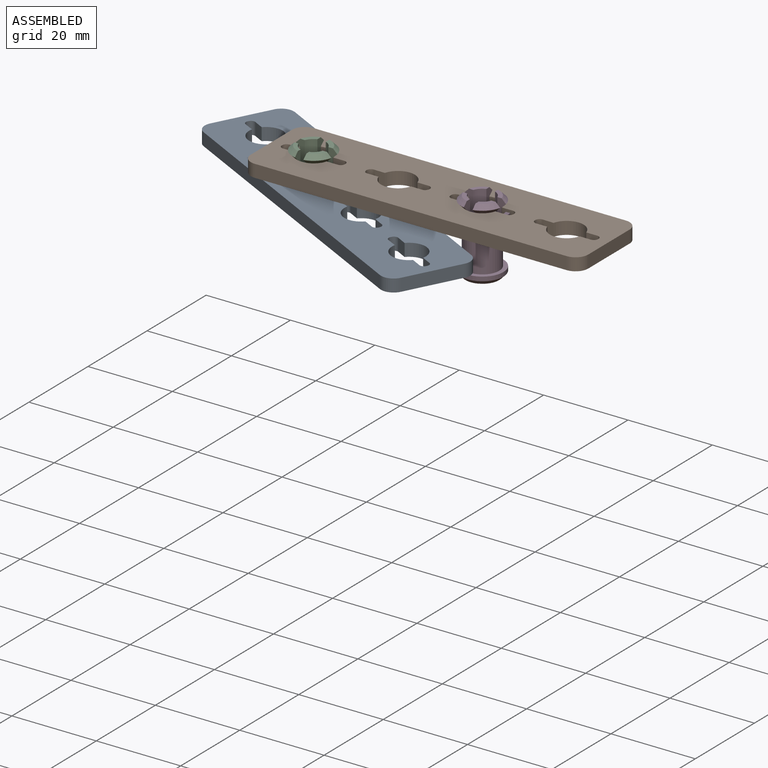
[diagram: assembled view]
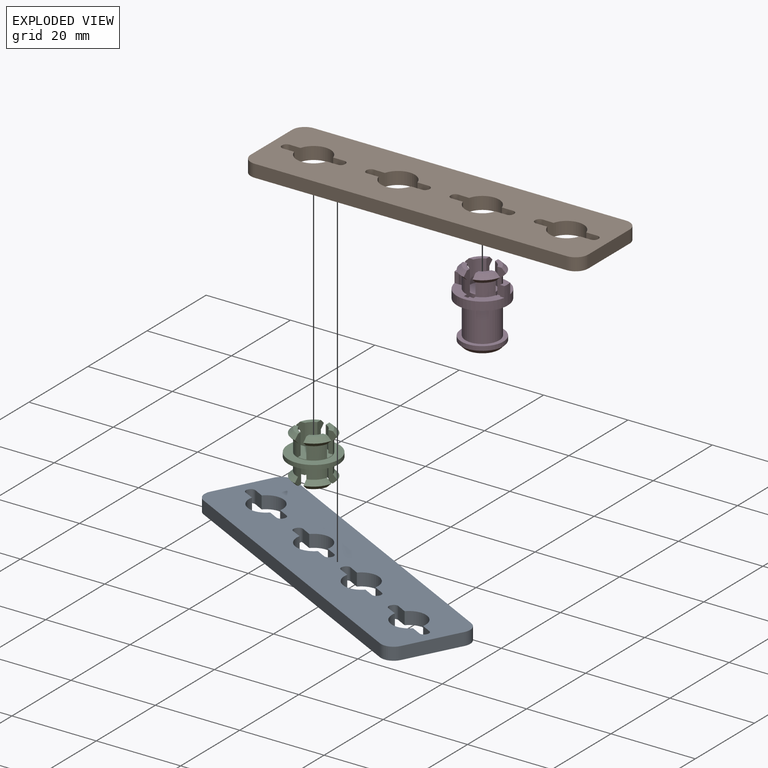
[diagram: exploded view]
GUIDED TOUR — MATED ASSEMBLY (Onshape document 07a3367b0b42184f097353d7, AutoMate assembly 07a3367b0b42184f097353d7_e492e3dcfe15bc395255ba68_c678337dc5a68c4c449586d9_default)

This assembly has 4 components, labeled P0..P3 below (a component is one placed occurrence of a part; the same part can appear more than once), held together by 3 mates. A mate is a constraint between two components; its type names the relative motion it leaves free:
  FASTENED — locks the two components together rigidly (no relative motion),
  REVOLUTE — leaves rotation about the listed axis free (a hinge).
Axis/direction vectors are unit vectors and 'through' points are millimeter coordinates, both in the assembly's world frame.

MATES
  1. FASTENED "Fastened 2": P2 <-> P1, direction (0.000, 0.000, 1.000) through (-11.90, 30.59, 31.71) mm
  2. FASTENED "Fastened 1": P3 <-> P1, direction (0.000, 0.000, 1.000) through (28.10, 30.59, 31.71) mm
  3. REVOLUTE "Revolute 2": P2 <-> P0, axis (0.000, 0.000, 1.000) through (-11.90, 30.59, 24.51) mm

ASSEMBLY ORDER
  1. P1 — the base component [order heuristic]
  2. P2 [order heuristic]
  3. P3 [order heuristic]
  4. P0 [order heuristic]
Order-tag legend:
  [order heuristic] — this assembly is geometrically interlocked (no collision-free removal order exists), so components are listed in mate-graph order; insertion feasibility is not verified.

Of the 4 components, 3 carry the full construction recipe — the FeatureScript program that regenerates the part's solid from scratch; the rest are supplied as boundary geometry only.
Each toured component is shown spotlighted twice — in the assembled view, then in the exploded view, where a leader line traces a displaced component back to its assembled socket (saturated green if recipe-attached, orange if geometry-only; every other component desaturated gray) — followed by its recipe or geometry summary and the mates that hold it.
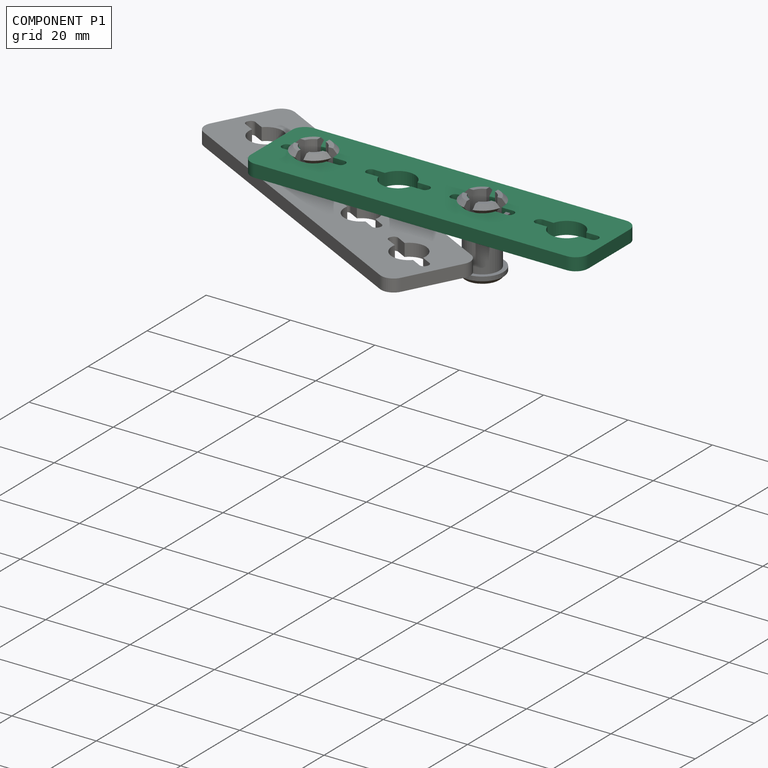
[diagram: component P1 — assembled]
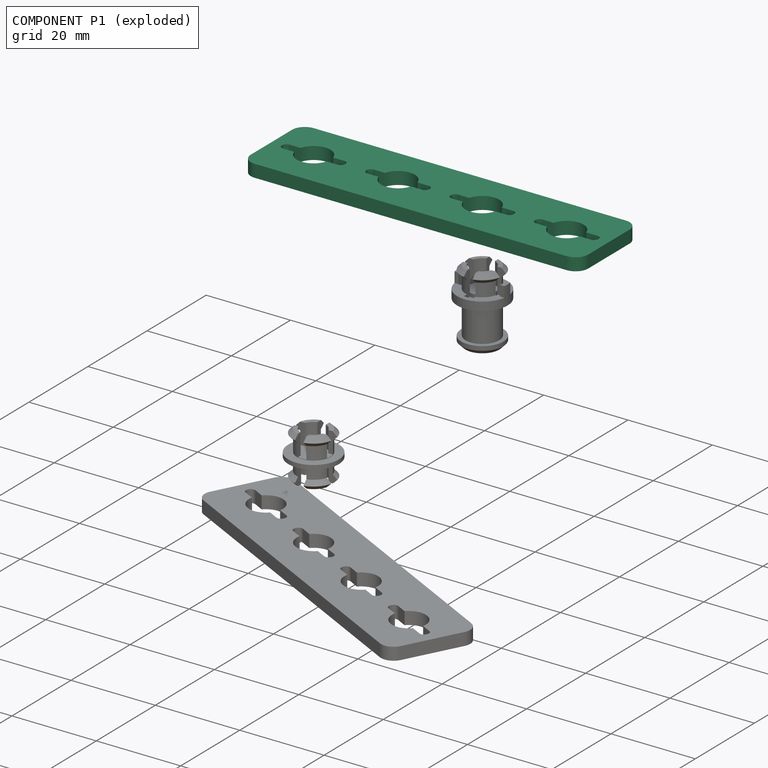
[diagram: component P1 — exploded]
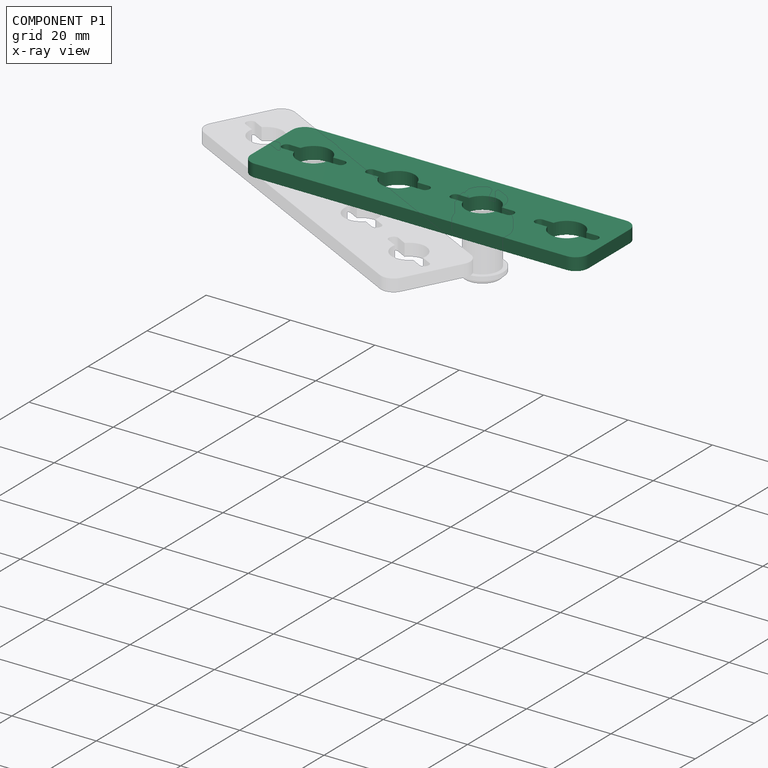
[diagram: component P1 — x-ray view]
COMPONENT P1 — same part as P0 (CADFS 00298308); its construction recipe is shown at P0.
Held by: FASTENED mate "Fastened 2" to P2; FASTENED mate "Fastened 1" to P3.
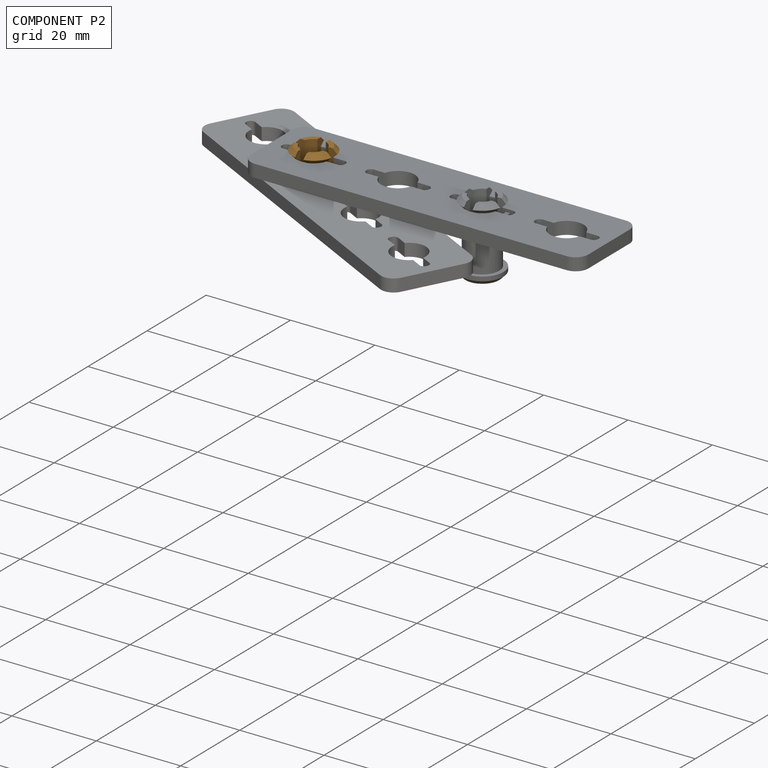
[diagram: component P2 — assembled]
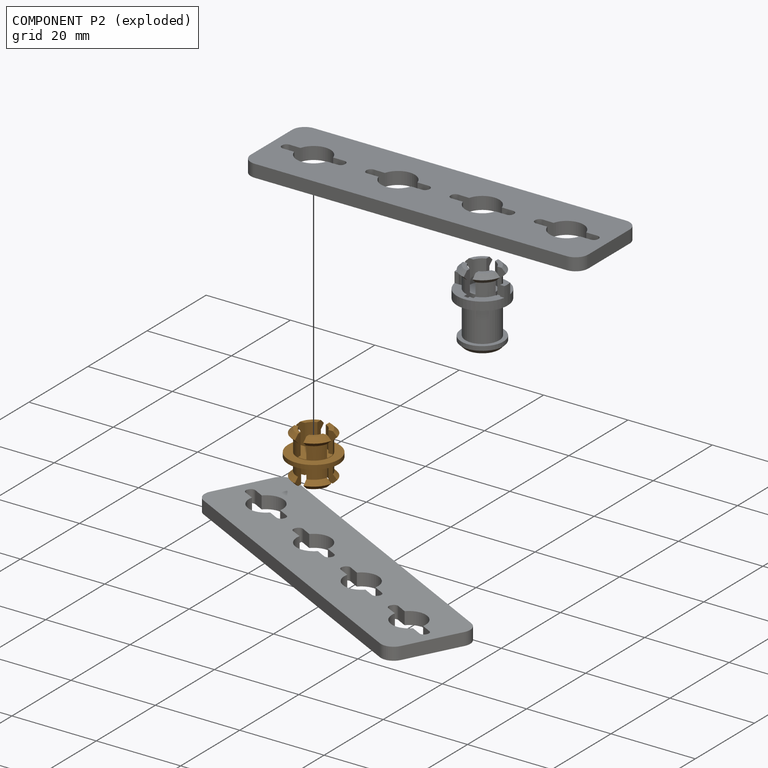
[diagram: component P2 — exploded]
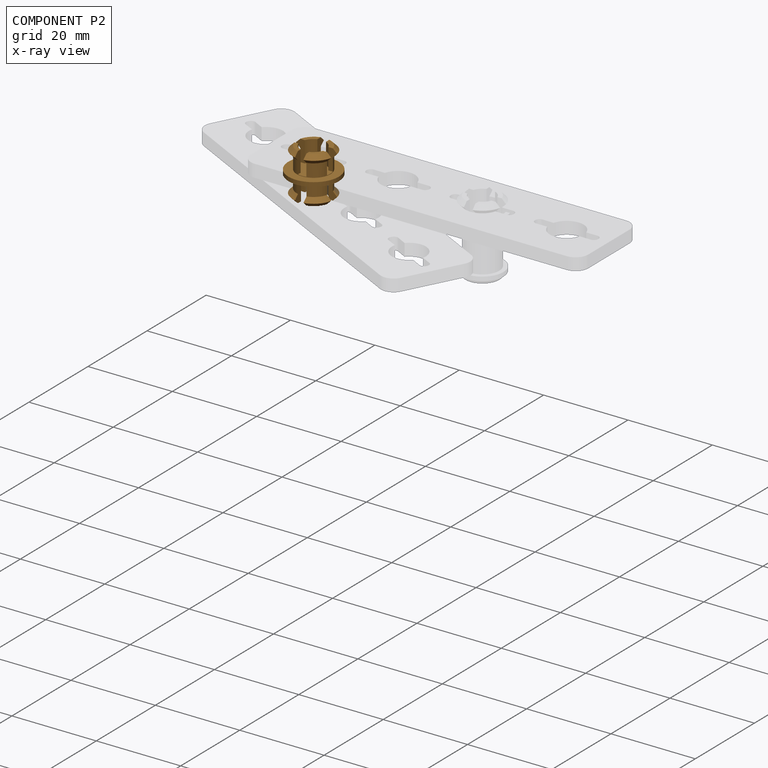
[diagram: component P2 — x-ray view]
COMPONENT P2 — geometry summary (no construction recipe available for this part):
  bounding box: 12.0 x 12.0 x 11.2 mm
  B-rep topology: 1 solid, 57 faces, 300 edges
  volume: 297 mm^3 (18% of its bounding box)
  symmetry: mirror-symmetric across its x mid-plane
Held by: FASTENED mate "Fastened 2" to P1; REVOLUTE mate "Revolute 2" to P0.
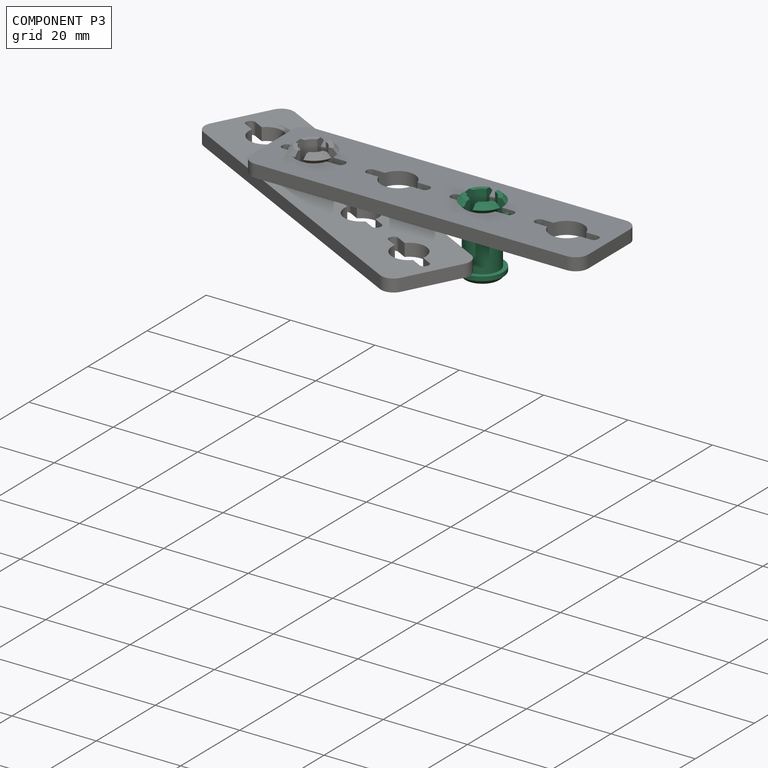
[diagram: component P3 — assembled]
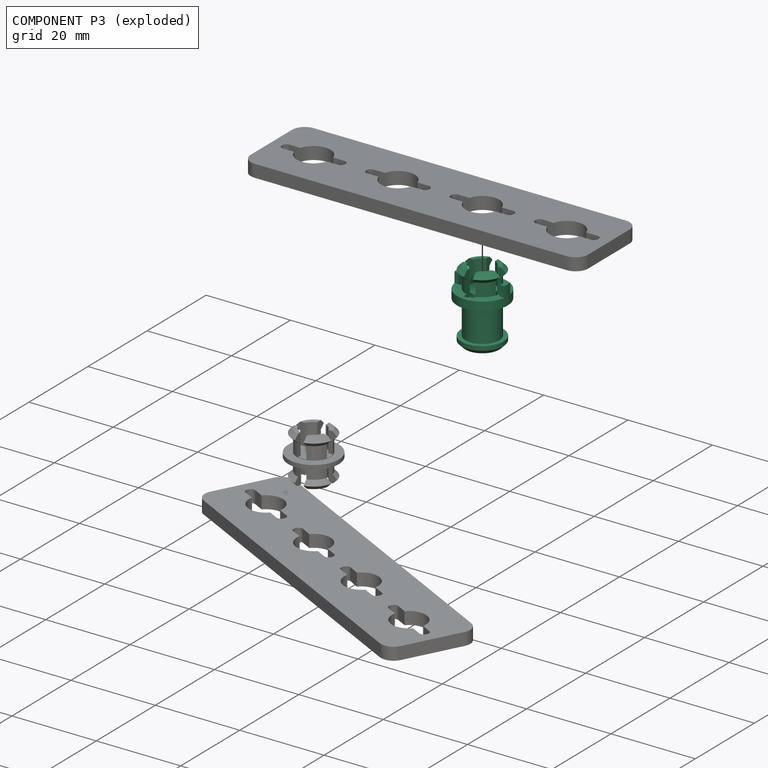
[diagram: component P3 — exploded]
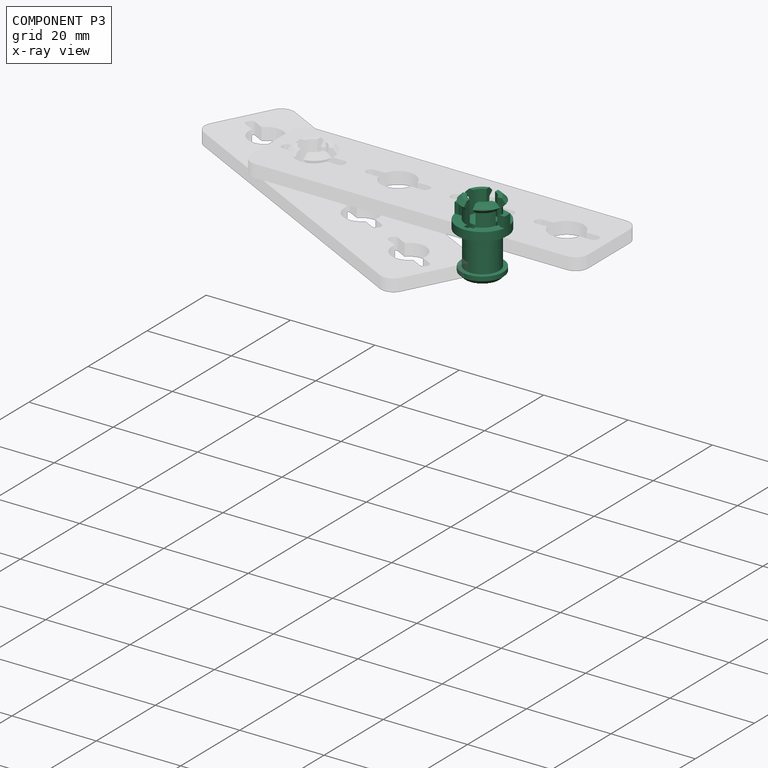
[diagram: component P3 — x-ray view]
COMPONENT P3 — recipe-attached (CADFS 00298309, mesh-verified: the recipe's output STEP matches this component's geometry to below the mesh-comparison resolution (tessellation chordal tolerance ~0.0361 mm)).
Held by: FASTENED mate "Fastened 1" to P1.
Construction recipe (FeatureScript — the CAD program that rebuilds this solid; sketch coordinates are in the units given by the * unit suffixes, e.g. mm):

FeatureScript 1549;
import(path : "onshape/std/geometry.fs", version : "1549.0");
import(path : "onshape/std/common.fs", version : "1549.0");
const mm = millimeter;
const VERTEX = EntityType.VERTEX;
const EDGE = EntityType.EDGE;
const FACE = EntityType.FACE;
const BODY = EntityType.BODY;
function v(x, y){return vector(x, y);}
function OD(order){return orderDisambiguation(order);}
function OSD(set){return originalSetDisambiguation(set);}
function TD(topology){return topologyDisambiguation(topology);}
function TDD(query){return trueDependencyDisambiguation(query);}
function sQuery(a, b, c) {return sketchEntityQuery(a, b, c);}

annotation { "Feature Type Name" : "Feature", "Feature Type Description" : "" }
export const myFeature = defineFeature(function(context is Context, id is Id, definition is map)
    precondition{}
    {
        {
            var Q0;
            Q0=qCreatedBy(makeId("Top.planeOp"),FACE);
            var sketch = newSketch(context, id + "F0", { "sketchPlane" : qUnion([Q0])});
            skCircle(sketch, "E0", {"center": v(0, 0) * mm, "radius": 5 * mm});
            skSolve(sketch);
        }
        {
            var Q0;
            Q0 = qSketchRegion(id + "F0", true);
            extrude(context, id + "F1", {"entities" : qUnion([Q0]), "depth" : 2 * mm});
        }
        {
            var Q0;
            Q0=makeQuery(id+"F1.opExtrude","CAP_FACE",FACE,{"disambiguationData":[OSD([sQuery(id+"F0.wireOp",EDGE,"E0")])],"isStart":false});
            var sketch = newSketch(context, id + "F2", { "sketchPlane" : qUnion([Q0])});
            skCircle(sketch, "E1", {"center": v(0, 0) * mm, "radius": 4 * mm});
            skSolve(sketch);
        }
        {
            var Q0;
            Q0 = qSketchRegion(id + "F2", true);
            extrude(context, id + "F3", {"entities" : qUnion([Q0]), "operationType" : NewBodyOperationType.ADD, "depth" : 8 * mm});
        }
        {
            var Q0;
            Q0=makeQuery(id+"F3.opExtrude","CAP_FACE",FACE,{"disambiguationData":[OSD([sQuery(id+"F2.wireOp",EDGE,"E1")])],"isStart":false});
            var sketch = newSketch(context, id + "F4", { "sketchPlane" : qUnion([Q0])});
            skCircle(sketch, "E2", {"center": v(0, 0) * mm, "radius": 6 * mm});
            skSolve(sketch);
        }
        {
            var Q0;
            Q0 = qSketchRegion(id + "F4", true);
            extrude(context, id + "F5", {"entities" : qUnion([Q0]), "operationType" : NewBodyOperationType.ADD, "depth" : 2 * mm});
        }
        {
            var Q0;
            Q0=makeQuery(id+"F5.opExtrude","CAP_FACE",FACE,{"disambiguationData":[OSD([sQuery(id+"F4.wireOp",EDGE,"E2")])],"isStart":false});
            var sketch = newSketch(context, id + "F6", { "sketchPlane" : qUnion([Q0])});
            skCircle(sketch, "E3", {"center": v(0, 0) * mm, "radius": 4.15 * mm});
            skLineSegment(sketch, "E4", {"start": v(-5.92, 1) * mm, "end": v(-4.52, 1) * mm});
            skLineSegment(sketch, "E5.MirrorCS", {"start": v(5.92, 1) * mm, "end": v(4.52, 1) * mm});
            skLineSegment(sketch, "E6.MirrorCS", {"start": v(5.92, -1) * mm, "end": v(4.52, -1) * mm});
            skLineSegment(sketch, "E7.MirrorCS", {"start": v(-5.92, -1) * mm, "end": v(-4.52, -1) * mm});
            skLineSegment(sketch, "E8", {"start": v(-4.52, 1) * mm, "end": v(-4.52, -1) * mm});
            skLineSegment(sketch, "E9.MirrorCS", {"start": v(4.52, 1) * mm, "end": v(4.52, -1) * mm});
            skLineSegment(sketch, "E10", {"start": v(-4.03, 1) * mm, "end": v(4.03, 1) * mm});
            skLineSegment(sketch, "E11.MirrorCS", {"start": v(-4.03, -1) * mm, "end": v(4.03, -1) * mm});
            skLineSegment(sketch, "E12", {"start": v(-1, 4.03) * mm, "end": v(-1, -4.03) * mm});
            skLineSegment(sketch, "E13.MirrorCS", {"start": v(1, 4.03) * mm, "end": v(1, -4.03) * mm});
            skSolve(sketch);
        }
        {
            var Q0;
            {var subQ0=sQuery(id+"F6.wireOp",EDGE,"E5.MirrorCS");Q0=makeQuery(id+"F6.imprint","IMPRINT",FACE,{"disambiguationData":[TD([[makeQuery(id+"F6.imprint","IMPRINT",EDGE,{"derivedFrom":subQ0}),1.0]])]});}
            var Q1;
            {var subQ0=sQuery(id+"F6.wireOp",EDGE,"E4");Q1=makeQuery(id+"F6.imprint","IMPRINT",FACE,{"disambiguationData":[TD([[makeQuery(id+"F6.imprint","IMPRINT",EDGE,{"derivedFrom":subQ0}),-1.0]])]});}
            extrude(context, id + "F7", {"entities" : qUnion([Q0, Q1]), "operationType" : NewBodyOperationType.ADD, "depth" : 2.5 * mm});
        }
        {
            var Q0;
            Q0=makeQuery(id+"F5.opExtrude","CAP_FACE",FACE,{"disambiguationData":[OSD([sQuery(id+"F4.wireOp",EDGE,"E2")])],"isStart":false});
            var sketch = newSketch(context, id + "F8", { "sketchPlane" : qUnion([Q0])});
            skCircle(sketch, "E14", {"center": v(0, 0) * mm, "radius": 4 * mm});
            skCircle(sketch, "E15", {"center": v(0, 0) * mm, "radius": 3 * mm});
            skSolve(sketch);
        }
        {
            var Q0;
            Q0=makeQuery(id+"F1.opExtrude","CAP_FACE",FACE,{"disambiguationData":[OSD([sQuery(id+"F0.wireOp",EDGE,"E0")])],"isStart":true});
            var sketch = newSketch(context, id + "F9", { "sketchPlane" : qUnion([Q0])});
            skLineSegment(sketch, "E16", {"start": v(-1.6, 2.6) * mm, "end": v(-1.6, -2.6) * mm});
            skLineSegment(sketch, "E17.MirrorCS", {"start": v(1.6, 2.6) * mm, "end": v(1.6, -2.6) * mm});
            skArc(sketch, "E18", {"start": v(-1.6, 2.6) * mm, "mid": v(0, 3.05) * mm, "end": v(1.6, 2.6) * mm});
            skArc(sketch, "E19", {"start": v(-1.6, -2.6) * mm, "mid": v(0, -3.05) * mm, "end": v(1.6, -2.6) * mm});
            skSolve(sketch);
        }
        {
            var Q0;
            Q0 = qSketchRegion(id + "F9", true);
            extrude(context, id + "F10", {"entities" : qUnion([Q0]), "operationType" : NewBodyOperationType.REMOVE, "oppositeDirection" : true, "depth" : 8 * mm});
        }
        {
            var Q0;
            Q0=makeQuery(id+"F1.opExtrude","CAP_EDGE",EDGE,{"disambiguationData":[OSD([sQuery(id+"F0.wireOp",EDGE,"E0")])],"isStart":true});
            chamfer(context, id + "F11", {"entities" : qUnion([Q0]), "width" : 1 * mm, "tangentPropagation" : true});
        }
        {
            var Q0;
            Q0=makeQuery(id+"F8.imprint","IMPRINT",FACE,{"disambiguationData":[TD([[makeQuery(id+"F8.imprint","IMPRINT",EDGE,{"derivedFrom":sQuery(id+"F8.wireOp",EDGE,"E14")}),1.0]])]});
            extrude(context, id + "F12", {"entities" : qUnion([Q0]), "operationType" : NewBodyOperationType.ADD, "depth" : 3.1 * mm});
        }
        {
            var Q0;
            Q0=makeQuery(id+"F12.opExtrude","CAP_FACE",FACE,{"disambiguationData":[OSD([sQuery(id+"F8.wireOp",EDGE,"E14"),sQuery(id+"F8.wireOp",EDGE,"E15")])],"isStart":false});
            var sketch = newSketch(context, id + "F13", { "sketchPlane" : qUnion([Q0])});
            skCircle(sketch, "E20", {"center": v(0, 0) * mm, "radius": 5 * mm});
            skSolve(sketch);
        }
        {
            var Q0;
            Q0=makeQuery(id+"F13.imprint","IMPRINT",FACE,{"disambiguationData":[TD([[makeQuery(id+"F13.imprint","IMPRINT",EDGE,{"derivedFrom":sQuery(id+"F13.wireOp",EDGE,"E20")}),1.0]])]});
            var Q1;
            Q1=makeQuery(id+"F13.imprint","IMPRINT",FACE,{"disambiguationData":[TD([[makeQuery(id+"F13.imprint","IMPRINT",EDGE,{"derivedFrom":makeQuery(id+"F12.opExtrude","CAP_EDGE",EDGE,{"disambiguationData":[OSD([sQuery(id+"F8.wireOp",EDGE,"E14")])],"isStart":false})}),1.0]])]});
            extrude(context, id + "F14", {"entities" : qUnion([Q0, Q1]), "operationType" : NewBodyOperationType.ADD, "depth" : 2 * mm});
        }
        {
            var Q0;
            Q0=makeQuery(id+"F14.opExtrude","CAP_FACE",FACE,{"disambiguationData":[OSD([sQuery(id+"F8.wireOp",EDGE,"E15"),sQuery(id+"F13.wireOp",EDGE,"E20")])],"isStart":false});
            var sketch = newSketch(context, id + "F15", { "sketchPlane" : qUnion([Q0])});
            skLineSegment(sketch, "E21", {"start": v(-4.9, 1) * mm, "end": v(4.9, 1) * mm});
            skLineSegment(sketch, "E22.MirrorCS", {"start": v(-4.9, -1) * mm, "end": v(4.9, -1) * mm});
            skLineSegment(sketch, "E23", {"start": v(-1.05, 4.89) * mm, "end": v(-0.95, -4.9) * mm});
            skLineSegment(sketch, "E24.MirrorCS", {"start": v(1, 4.9) * mm, "end": v(1.08, -4.89) * mm});
            skSolve(sketch);
        }
        {
            var Q0;
            {var subQ0=sQuery(id+"F15.wireOp",EDGE,"E21");var subQ1=makeQuery(id+"F14.opExtrude","CAP_EDGE",EDGE,{"disambiguationData":[OSD([sQuery(id+"F13.wireOp",EDGE,"E20")])],"isStart":false});var subQ2=makeQuery(id+"F15.imprint","INTERSECT",VERTEX,{"disambiguationData":[OD(1.0)],"derivedFrom":[subQ1,subQ0]});Q0=makeQuery(id+"F15.imprint","IMPRINT",FACE,{"disambiguationData":[TD([[makeQuery(id+"F15.imprint","IMPRINT",EDGE,{"disambiguationData":[TD([[subQ2,1.0]])],"derivedFrom":subQ0}),-1.0]])]});}
            var Q1;
            {var subQ0=sQuery(id+"F15.wireOp",EDGE,"E23");var subQ1=makeQuery(id+"F14.opExtrude","CAP_EDGE",EDGE,{"disambiguationData":[OSD([sQuery(id+"F13.wireOp",EDGE,"E20")])],"isStart":false});var subQ2=makeQuery(id+"F15.imprint","INTERSECT",VERTEX,{"disambiguationData":[OD(0.0)],"derivedFrom":[subQ1,subQ0]});Q1=makeQuery(id+"F15.imprint","IMPRINT",FACE,{"disambiguationData":[TD([[makeQuery(id+"F15.imprint","IMPRINT",EDGE,{"disambiguationData":[TD([[subQ2,-1.0]])],"derivedFrom":subQ0}),1.0]])]});}
            var Q2;
            {var subQ0=sQuery(id+"F15.wireOp",EDGE,"E21");var subQ1=makeQuery(id+"F14.opExtrude","CAP_EDGE",EDGE,{"disambiguationData":[OSD([sQuery(id+"F13.wireOp",EDGE,"E20")])],"isStart":false});var subQ2=makeQuery(id+"F15.imprint","INTERSECT",VERTEX,{"disambiguationData":[OD(0.0)],"derivedFrom":[subQ1,subQ0]});Q2=makeQuery(id+"F15.imprint","IMPRINT",FACE,{"disambiguationData":[TD([[makeQuery(id+"F15.imprint","IMPRINT",EDGE,{"disambiguationData":[TD([[subQ2,-1.0]])],"derivedFrom":subQ0}),-1.0]])]});}
            var Q3;
            {var subQ0=sQuery(id+"F15.wireOp",EDGE,"E23");var subQ1=makeQuery(id+"F14.opExtrude","CAP_EDGE",EDGE,{"disambiguationData":[OSD([sQuery(id+"F13.wireOp",EDGE,"E20")])],"isStart":false});var subQ2=makeQuery(id+"F15.imprint","INTERSECT",VERTEX,{"disambiguationData":[OD(1.0)],"derivedFrom":[subQ1,subQ0]});Q3=makeQuery(id+"F15.imprint","IMPRINT",FACE,{"disambiguationData":[TD([[makeQuery(id+"F15.imprint","IMPRINT",EDGE,{"disambiguationData":[TD([[subQ2,1.0]])],"derivedFrom":subQ0}),1.0]])]});}
            extrude(context, id + "F16", {"entities" : qUnion([Q0, Q1, Q2, Q3]), "operationType" : NewBodyOperationType.REMOVE, "oppositeDirection" : true, "depth" : 6 * mm});
        }
        {
            var Q0;
            {var subQ0=sQuery(id+"F13.wireOp",EDGE,"E20");var subQ2=sQuery(id+"F15.wireOp",EDGE,"E22.MirrorCS");var subQ3=makeQuery(id+"F14.opExtrude","CAP_EDGE",EDGE,{"disambiguationData":[OSD([subQ0])],"isStart":false});Q0=makeQuery(id+"F16.boolean.opBoolean","SPLIT",EDGE,{"disambiguationData":[TD([makeQuery(id+"F16.opExtrude","SWEPT_FACE",FACE,{"disambiguationData":[OSD([subQ2]),TDD([makeQuery(id+"F15.imprint","IMPRINT",EDGE,{"disambiguationData":[TD([[makeQuery(id+"F15.imprint","INTERSECT",VERTEX,{"disambiguationData":[OD(1.0)],"derivedFrom":[subQ3,subQ2]}),1.0]])],"derivedFrom":subQ2})])]})])],"derivedFrom":makeQuery(id+"F14.opExtrude","CAP_EDGE",EDGE,{"disambiguationData":[OSD([subQ0])],"isStart":true})});}
            var Q1;
            {var subQ0=sQuery(id+"F13.wireOp",EDGE,"E20");var subQ2=sQuery(id+"F15.wireOp",EDGE,"E21");var subQ3=makeQuery(id+"F14.opExtrude","CAP_EDGE",EDGE,{"disambiguationData":[OSD([subQ0])],"isStart":false});Q1=makeQuery(id+"F16.boolean.opBoolean","SPLIT",EDGE,{"disambiguationData":[TD([makeQuery(id+"F16.opExtrude","SWEPT_FACE",FACE,{"disambiguationData":[OSD([subQ2]),TDD([makeQuery(id+"F15.imprint","IMPRINT",EDGE,{"disambiguationData":[TD([[makeQuery(id+"F15.imprint","INTERSECT",VERTEX,{"disambiguationData":[OD(1.0)],"derivedFrom":[subQ3,subQ2]}),1.0]])],"derivedFrom":subQ2})])]})])],"derivedFrom":makeQuery(id+"F14.opExtrude","CAP_EDGE",EDGE,{"disambiguationData":[OSD([subQ0])],"isStart":true})});}
            var Q2;
            {var subQ0=sQuery(id+"F13.wireOp",EDGE,"E20");var subQ1=sQuery(id+"F15.wireOp",EDGE,"E22.MirrorCS");var subQ2=makeQuery(id+"F14.opExtrude","CAP_EDGE",EDGE,{"disambiguationData":[OSD([subQ0])],"isStart":false});Q2=makeQuery(id+"F16.boolean.opBoolean","SPLIT",EDGE,{"disambiguationData":[TD([makeQuery(id+"F16.opExtrude","SWEPT_FACE",FACE,{"disambiguationData":[OSD([subQ1]),TDD([makeQuery(id+"F15.imprint","IMPRINT",EDGE,{"disambiguationData":[TD([[makeQuery(id+"F15.imprint","INTERSECT",VERTEX,{"disambiguationData":[OD(0.0)],"derivedFrom":[subQ2,subQ1]}),-1.0]])],"derivedFrom":subQ1})])]})])],"derivedFrom":makeQuery(id+"F14.opExtrude","CAP_EDGE",EDGE,{"disambiguationData":[OSD([subQ0])],"isStart":true})});}
            var Q3;
            {var subQ0=sQuery(id+"F13.wireOp",EDGE,"E20");var subQ2=sQuery(id+"F15.wireOp",EDGE,"E22.MirrorCS");var subQ3=makeQuery(id+"F14.opExtrude","CAP_EDGE",EDGE,{"disambiguationData":[OSD([subQ0])],"isStart":false});Q3=makeQuery(id+"F16.boolean.opBoolean","SPLIT",EDGE,{"disambiguationData":[TD([makeQuery(id+"F16.opExtrude","SWEPT_FACE",FACE,{"disambiguationData":[OSD([subQ2]),TDD([makeQuery(id+"F15.imprint","IMPRINT",EDGE,{"disambiguationData":[TD([[makeQuery(id+"F15.imprint","INTERSECT",VERTEX,{"disambiguationData":[OD(1.0)],"derivedFrom":[subQ3,subQ2]}),1.0]])],"derivedFrom":subQ2})])]})])],"derivedFrom":subQ3});}
            var Q4;
            {var subQ0=sQuery(id+"F13.wireOp",EDGE,"E20");var subQ1=sQuery(id+"F15.wireOp",EDGE,"E22.MirrorCS");var subQ2=makeQuery(id+"F14.opExtrude","CAP_EDGE",EDGE,{"disambiguationData":[OSD([subQ0])],"isStart":false});Q4=makeQuery(id+"F16.boolean.opBoolean","SPLIT",EDGE,{"disambiguationData":[TD([makeQuery(id+"F16.opExtrude","SWEPT_FACE",FACE,{"disambiguationData":[OSD([subQ1]),TDD([makeQuery(id+"F15.imprint","IMPRINT",EDGE,{"disambiguationData":[TD([[makeQuery(id+"F15.imprint","INTERSECT",VERTEX,{"disambiguationData":[OD(0.0)],"derivedFrom":[subQ2,subQ1]}),-1.0]])],"derivedFrom":subQ1})])]})])],"derivedFrom":subQ2});}
            var Q5;
            {var subQ0=sQuery(id+"F13.wireOp",EDGE,"E20");var subQ2=sQuery(id+"F15.wireOp",EDGE,"E21");var subQ3=makeQuery(id+"F14.opExtrude","CAP_EDGE",EDGE,{"disambiguationData":[OSD([subQ0])],"isStart":false});Q5=makeQuery(id+"F16.boolean.opBoolean","SPLIT",EDGE,{"disambiguationData":[TD([makeQuery(id+"F16.opExtrude","SWEPT_FACE",FACE,{"disambiguationData":[OSD([subQ2]),TDD([makeQuery(id+"F15.imprint","IMPRINT",EDGE,{"disambiguationData":[TD([[makeQuery(id+"F15.imprint","INTERSECT",VERTEX,{"disambiguationData":[OD(1.0)],"derivedFrom":[subQ3,subQ2]}),1.0]])],"derivedFrom":subQ2})])]})])],"derivedFrom":subQ3});}
            var Q6;
            {var subQ0=sQuery(id+"F13.wireOp",EDGE,"E20");var subQ3=makeQuery(id+"F14.opExtrude","CAP_EDGE",EDGE,{"disambiguationData":[OSD([subQ0])],"isStart":false});var subQ5=sQuery(id+"F15.wireOp",EDGE,"E21");Q6=makeQuery(id+"F16.boolean.opBoolean","SPLIT",EDGE,{"disambiguationData":[TD([makeQuery(id+"F16.opExtrude","SWEPT_FACE",FACE,{"disambiguationData":[OSD([subQ5]),TDD([makeQuery(id+"F15.imprint","IMPRINT",EDGE,{"disambiguationData":[TD([[makeQuery(id+"F15.imprint","INTERSECT",VERTEX,{"disambiguationData":[OD(0.0)],"derivedFrom":[subQ3,subQ5]}),-1.0]])],"derivedFrom":subQ5})])]})])],"derivedFrom":subQ3});}
            var Q7;
            {var subQ0=sQuery(id+"F13.wireOp",EDGE,"E20");var subQ2=sQuery(id+"F15.wireOp",EDGE,"E21");var subQ3=makeQuery(id+"F14.opExtrude","CAP_EDGE",EDGE,{"disambiguationData":[OSD([subQ0])],"isStart":false});Q7=makeQuery(id+"F16.boolean.opBoolean","SPLIT",EDGE,{"disambiguationData":[TD([makeQuery(id+"F16.opExtrude","SWEPT_FACE",FACE,{"disambiguationData":[OSD([subQ2]),TDD([makeQuery(id+"F15.imprint","IMPRINT",EDGE,{"disambiguationData":[TD([[makeQuery(id+"F15.imprint","INTERSECT",VERTEX,{"disambiguationData":[OD(0.0)],"derivedFrom":[subQ3,subQ2]}),-1.0]])],"derivedFrom":subQ2})])]})])],"derivedFrom":makeQuery(id+"F14.opExtrude","CAP_EDGE",EDGE,{"disambiguationData":[OSD([subQ0])],"isStart":true})});}
            chamfer(context, id + "F17", {"entities" : qUnion([Q0, Q1, Q2, Q3, Q4, Q5, Q6, Q7]), "width" : 1 * mm, "tangentPropagation" : true});
        }
    });
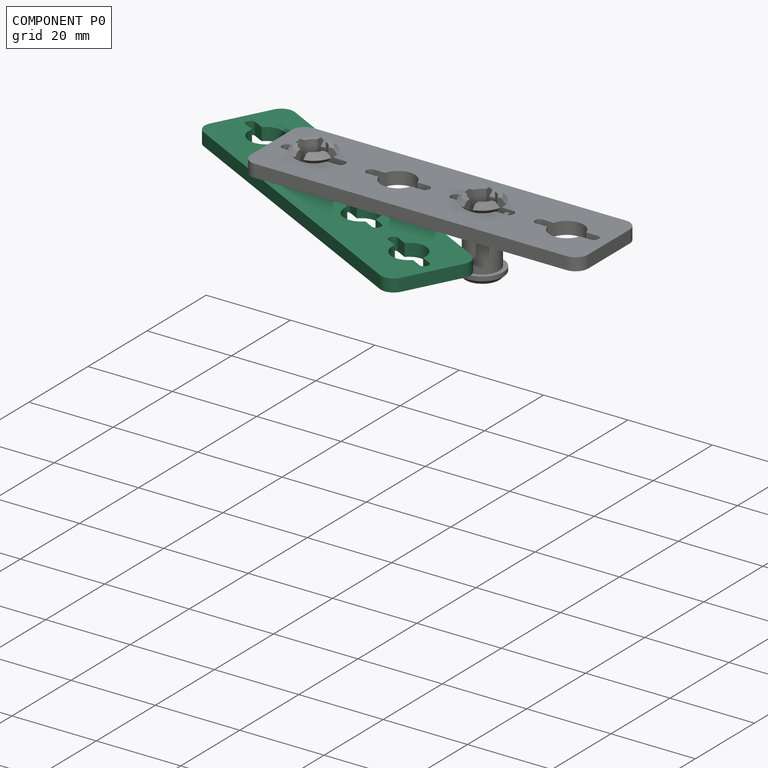
[diagram: component P0 — assembled]
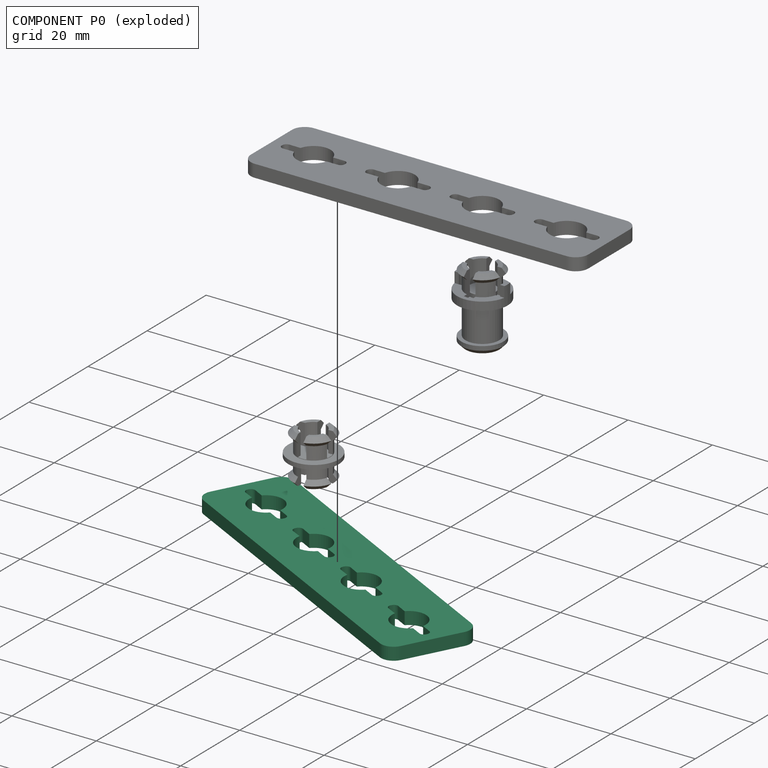
[diagram: component P0 — exploded]
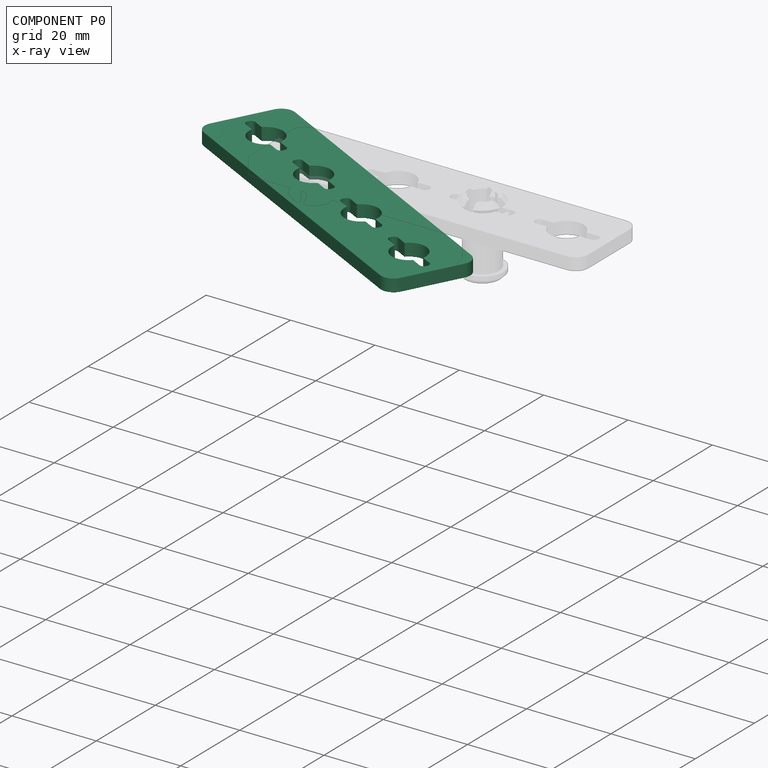
[diagram: component P0 — x-ray view]
COMPONENT P0 — recipe-attached (CADFS 00298308, mesh-verified: the recipe's output STEP matches this component's geometry to below the mesh-comparison resolution (tessellation chordal tolerance ~0.124 mm)).
Held by: REVOLUTE mate "Revolute 2" to P2.
Construction recipe (FeatureScript — the CAD program that rebuilds this solid; sketch coordinates are in the units given by the * unit suffixes, e.g. mm):

FeatureScript 1549;
import(path : "onshape/std/geometry.fs", version : "1549.0");
import(path : "onshape/std/common.fs", version : "1549.0");
const mm = millimeter;
const VERTEX = EntityType.VERTEX;
const EDGE = EntityType.EDGE;
const FACE = EntityType.FACE;
const BODY = EntityType.BODY;
function v(x, y){return vector(x, y);}
function OD(order){return orderDisambiguation(order);}
function OSD(set){return originalSetDisambiguation(set);}
function TD(topology){return topologyDisambiguation(topology);}
function TDD(query){return trueDependencyDisambiguation(query);}
function sQuery(a, b, c) {return sketchEntityQuery(a, b, c);}

annotation { "Feature Type Name" : "Feature", "Feature Type Description" : "" }
export const myFeature = defineFeature(function(context is Context, id is Id, definition is map)
    precondition{}
    {
        {
            var Q0;
            Q0=qCreatedBy(makeId("Top.planeOp"),FACE);
            var sketch = newSketch(context, id + "F0", { "sketchPlane" : qUnion([Q0])});
            skLineSegment(sketch, "E0.bottom", {"start": v(-30.97, -3.38) * mm, "end": v(43.03, -3.38) * mm});
            skLineSegment(sketch, "E0.top", {"start": v(-30.97, -23.38) * mm, "end": v(43.03, -23.38) * mm});
            skLineSegment(sketch, "E0.left", {"start": v(-33.97, -6.38) * mm, "end": v(-33.97, -20.38) * mm});
            skLineSegment(sketch, "E0.right", {"start": v(46.03, -6.38) * mm, "end": v(46.03, -20.38) * mm});
            skPoint(sketch, "E1.visualSharp", {"position": v(-33.97, -23.38) * mm});
            skArc(sketch, "E1.filletArc", {"start": v(-33.97, -20.38) * mm, "mid": v(-33.09, -22.5) * mm, "end": v(-30.97, -23.38) * mm});
            skPoint(sketch, "E2.visualSharp", {"position": v(-33.97, -3.38) * mm});
            skArc(sketch, "E2.filletArc", {"start": v(-30.97, -3.38) * mm, "mid": v(-33.09, -4.26) * mm, "end": v(-33.97, -6.38) * mm});
            skPoint(sketch, "E3.visualSharp", {"position": v(46.03, -3.38) * mm});
            skArc(sketch, "E3.filletArc", {"start": v(46.03, -6.38) * mm, "mid": v(45.16, -4.26) * mm, "end": v(43.03, -3.38) * mm});
            skPoint(sketch, "E4.visualSharp", {"position": v(46.03, -23.38) * mm});
            skArc(sketch, "E4.filletArc", {"start": v(43.03, -23.38) * mm, "mid": v(45.16, -22.5) * mm, "end": v(46.03, -20.38) * mm});
            skArc(sketch, "E5", {"start": v(-20.12, -12.28) * mm, "mid": v(-23.99, -9.38) * mm, "end": v(-27.82, -12.32) * mm});
            skLineSegment(sketch, "E6", {"start": v(-20.12, -12.28) * mm, "end": v(-17.47, -12.28) * mm});
            skLineSegment(sketch, "E7", {"start": v(-16.47, -13.28) * mm, "end": v(-16.47, -13.48) * mm});
            skLineSegment(sketch, "E8", {"start": v(-27.82, -12.32) * mm, "end": v(-30.45, -12.29) * mm});
            skLineSegment(sketch, "E9.MirrorCS", {"start": v(-20.12, -14.48) * mm, "end": v(-17.47, -14.48) * mm});
            skArc(sketch, "E10.MirrorCS", {"start": v(-20.12, -14.48) * mm, "mid": v(-23.99, -17.38) * mm, "end": v(-27.82, -14.44) * mm});
            skLineSegment(sketch, "E11.MirrorCS", {"start": v(-27.82, -14.44) * mm, "end": v(-30.45, -14.47) * mm});
            skLineSegment(sketch, "E12", {"start": v(-31.47, -13.29) * mm, "end": v(-31.47, -13.47) * mm});
            skPoint(sketch, "E13.visualSharp", {"position": v(-16.47, -12.28) * mm});
            skArc(sketch, "E13.filletArc", {"start": v(-16.47, -13.28) * mm, "mid": v(-16.76, -12.57) * mm, "end": v(-17.47, -12.28) * mm});
            skPoint(sketch, "E14.visualSharp", {"position": v(-16.47, -14.48) * mm});
            skArc(sketch, "E14.filletArc", {"start": v(-17.47, -14.48) * mm, "mid": v(-16.76, -14.19) * mm, "end": v(-16.47, -13.48) * mm});
            skPoint(sketch, "E15.visualSharp", {"position": v(-31.47, -12.28) * mm});
            skArc(sketch, "E15.filletArc", {"start": v(-30.45, -12.29) * mm, "mid": v(-31.17, -12.58) * mm, "end": v(-31.47, -13.29) * mm});
            skPoint(sketch, "E16.visualSharp", {"position": v(-31.47, -14.48) * mm});
            skArc(sketch, "E16.filletArc", {"start": v(-31.47, -13.47) * mm, "mid": v(-31.17, -14.18) * mm, "end": v(-30.45, -14.47) * mm});
            skLineSegment(sketch, "E17.1.0.0", {"start": v(-7.82, -12.32) * mm, "end": v(-10.45, -12.29) * mm});
            skPoint(sketch, "E17.1.0.1", {"position": v(3.53, -12.28) * mm});
            skLineSegment(sketch, "E17.1.0.2", {"start": v(-0.12, -12.28) * mm, "end": v(2.53, -12.28) * mm});
            skLineSegment(sketch, "E17.1.0.3", {"start": v(-0.12, -14.48) * mm, "end": v(2.53, -14.48) * mm});
            skPoint(sketch, "E17.1.0.4", {"position": v(3.53, -14.48) * mm});
            skArc(sketch, "E17.1.0.5", {"start": v(-0.12, -12.28) * mm, "mid": v(-3.99, -9.38) * mm, "end": v(-7.82, -12.32) * mm});
            skPoint(sketch, "E17.1.0.6", {"position": v(-11.47, -12.28) * mm});
            skPoint(sketch, "E17.1.0.7", {"position": v(-11.47, -14.48) * mm});
            skLineSegment(sketch, "E17.1.0.8", {"start": v(-7.82, -14.44) * mm, "end": v(-10.45, -14.47) * mm});
            skArc(sketch, "E17.1.0.9", {"start": v(-0.12, -14.48) * mm, "mid": v(-3.99, -17.38) * mm, "end": v(-7.82, -14.44) * mm});
            skArc(sketch, "E17.1.0.10", {"start": v(3.53, -13.28) * mm, "mid": v(3.24, -12.57) * mm, "end": v(2.53, -12.28) * mm});
            skArc(sketch, "E17.1.0.11", {"start": v(-10.45, -12.29) * mm, "mid": v(-11.17, -12.58) * mm, "end": v(-11.47, -13.29) * mm});
            skArc(sketch, "E17.1.0.12", {"start": v(2.53, -14.48) * mm, "mid": v(3.24, -14.19) * mm, "end": v(3.53, -13.48) * mm});
            skArc(sketch, "E17.1.0.13", {"start": v(-11.47, -13.47) * mm, "mid": v(-11.17, -14.18) * mm, "end": v(-10.45, -14.47) * mm});
            skLineSegment(sketch, "E17.1.0.14", {"start": v(3.53, -13.28) * mm, "end": v(3.53, -13.48) * mm});
            skLineSegment(sketch, "E17.1.0.15", {"start": v(-11.47, -13.29) * mm, "end": v(-11.47, -13.47) * mm});
            skLineSegment(sketch, "E17.2.0.0", {"start": v(12.18, -12.32) * mm, "end": v(9.55, -12.29) * mm});
            skPoint(sketch, "E17.2.0.1", {"position": v(23.53, -12.28) * mm});
            skLineSegment(sketch, "E17.2.0.2", {"start": v(19.88, -12.28) * mm, "end": v(22.53, -12.28) * mm});
            skLineSegment(sketch, "E17.2.0.3", {"start": v(19.88, -14.48) * mm, "end": v(22.53, -14.48) * mm});
            skPoint(sketch, "E17.2.0.4", {"position": v(23.53, -14.48) * mm});
            skArc(sketch, "E17.2.0.5", {"start": v(19.88, -12.28) * mm, "mid": v(16.01, -9.38) * mm, "end": v(12.18, -12.32) * mm});
            skPoint(sketch, "E17.2.0.6", {"position": v(8.53, -12.28) * mm});
            skPoint(sketch, "E17.2.0.7", {"position": v(8.53, -14.48) * mm});
            skLineSegment(sketch, "E17.2.0.8", {"start": v(12.18, -14.44) * mm, "end": v(9.55, -14.47) * mm});
            skArc(sketch, "E17.2.0.9", {"start": v(19.88, -14.48) * mm, "mid": v(16.01, -17.38) * mm, "end": v(12.18, -14.44) * mm});
            skArc(sketch, "E17.2.0.10", {"start": v(23.53, -13.28) * mm, "mid": v(23.24, -12.57) * mm, "end": v(22.53, -12.28) * mm});
            skArc(sketch, "E17.2.0.11", {"start": v(9.55, -12.29) * mm, "mid": v(8.83, -12.58) * mm, "end": v(8.53, -13.29) * mm});
            skArc(sketch, "E17.2.0.12", {"start": v(22.53, -14.48) * mm, "mid": v(23.24, -14.19) * mm, "end": v(23.53, -13.48) * mm});
            skArc(sketch, "E17.2.0.13", {"start": v(8.53, -13.47) * mm, "mid": v(8.83, -14.18) * mm, "end": v(9.55, -14.47) * mm});
            skLineSegment(sketch, "E17.2.0.14", {"start": v(23.53, -13.28) * mm, "end": v(23.53, -13.48) * mm});
            skLineSegment(sketch, "E17.2.0.15", {"start": v(8.53, -13.29) * mm, "end": v(8.53, -13.47) * mm});
            skLineSegment(sketch, "E17.3.0.0", {"start": v(32.18, -12.32) * mm, "end": v(29.55, -12.29) * mm});
            skPoint(sketch, "E17.3.0.1", {"position": v(43.53, -12.28) * mm});
            skLineSegment(sketch, "E17.3.0.2", {"start": v(39.88, -12.28) * mm, "end": v(42.53, -12.28) * mm});
            skLineSegment(sketch, "E17.3.0.3", {"start": v(39.88, -14.48) * mm, "end": v(42.53, -14.48) * mm});
            skPoint(sketch, "E17.3.0.4", {"position": v(43.53, -14.48) * mm});
            skArc(sketch, "E17.3.0.5", {"start": v(39.88, -12.28) * mm, "mid": v(36.01, -9.38) * mm, "end": v(32.18, -12.32) * mm});
            skPoint(sketch, "E17.3.0.6", {"position": v(28.53, -12.28) * mm});
            skPoint(sketch, "E17.3.0.7", {"position": v(28.53, -14.48) * mm});
            skLineSegment(sketch, "E17.3.0.8", {"start": v(32.18, -14.44) * mm, "end": v(29.55, -14.47) * mm});
            skArc(sketch, "E17.3.0.9", {"start": v(39.88, -14.48) * mm, "mid": v(36.01, -17.38) * mm, "end": v(32.18, -14.44) * mm});
            skArc(sketch, "E17.3.0.10", {"start": v(43.53, -13.28) * mm, "mid": v(43.24, -12.57) * mm, "end": v(42.53, -12.28) * mm});
            skArc(sketch, "E17.3.0.11", {"start": v(29.55, -12.29) * mm, "mid": v(28.83, -12.58) * mm, "end": v(28.53, -13.29) * mm});
            skArc(sketch, "E17.3.0.12", {"start": v(42.53, -14.48) * mm, "mid": v(43.24, -14.19) * mm, "end": v(43.53, -13.48) * mm});
            skArc(sketch, "E17.3.0.13", {"start": v(28.53, -13.47) * mm, "mid": v(28.83, -14.18) * mm, "end": v(29.55, -14.47) * mm});
            skLineSegment(sketch, "E17.3.0.14", {"start": v(43.53, -13.28) * mm, "end": v(43.53, -13.48) * mm});
            skLineSegment(sketch, "E17.3.0.15", {"start": v(28.53, -13.29) * mm, "end": v(28.53, -13.47) * mm});
            skLineSegment(sketch, "E17.direction1", {"start": v(-31.47, -14.48) * mm, "end": v(-11.47, -14.48) * mm, "construction": true});
            skSolve(sketch);
        }
        {
            var Q0;
            Q0 = qSketchRegion(id + "F0", true);
            extrude(context, id + "F1", {"entities" : qUnion([Q0]), "depth" : 3 * mm});
        }
    });
PROVENANCE & LICENSES
Assembly (occurrences, transforms, mates, per-part STEP geometry): AutoMate dataset, Zenodo record 7776208, CC0.
Construction recipes: CADFS (HuggingFace VladPyatov/CADFS, CC-BY-4.0, layered over the ABC dataset), FeatureScript reconstruction programs keyed by ABC model id.
Join: ABC meta listings map ABC model id -> Onshape documentId; within a shared document, parts are matched by geometric signature (bounding-box dims + volume at 0.1% relative tolerance, exact B-rep face/solid counts).
Verification: 3 of this assembly's 4 components carry a recipe attachment, and every attachment is mesh-verified: the CADFS STEP and the AutoMate member STEP were compared as meshes in their shared local frame (symmetric sampled-point-to-mesh distance); worst across the 3 attachments: below the mesh-comparison resolution (tessellation chordal tolerance ~0.124 mm) on a 83 mm part.
Renders: orthographic iso camera (az 35 / el 25); the floor grid conveys scale (grid pitch printed in each image; no ruler). In the exploded view each component is displaced by its stored offset vector: the offsets alone carry the explosion direction (mate normal/axis signs are not orientation cues and do not encode it), and separation distances are assigned per mate-chain, not proportionally to assembly-order depth.
